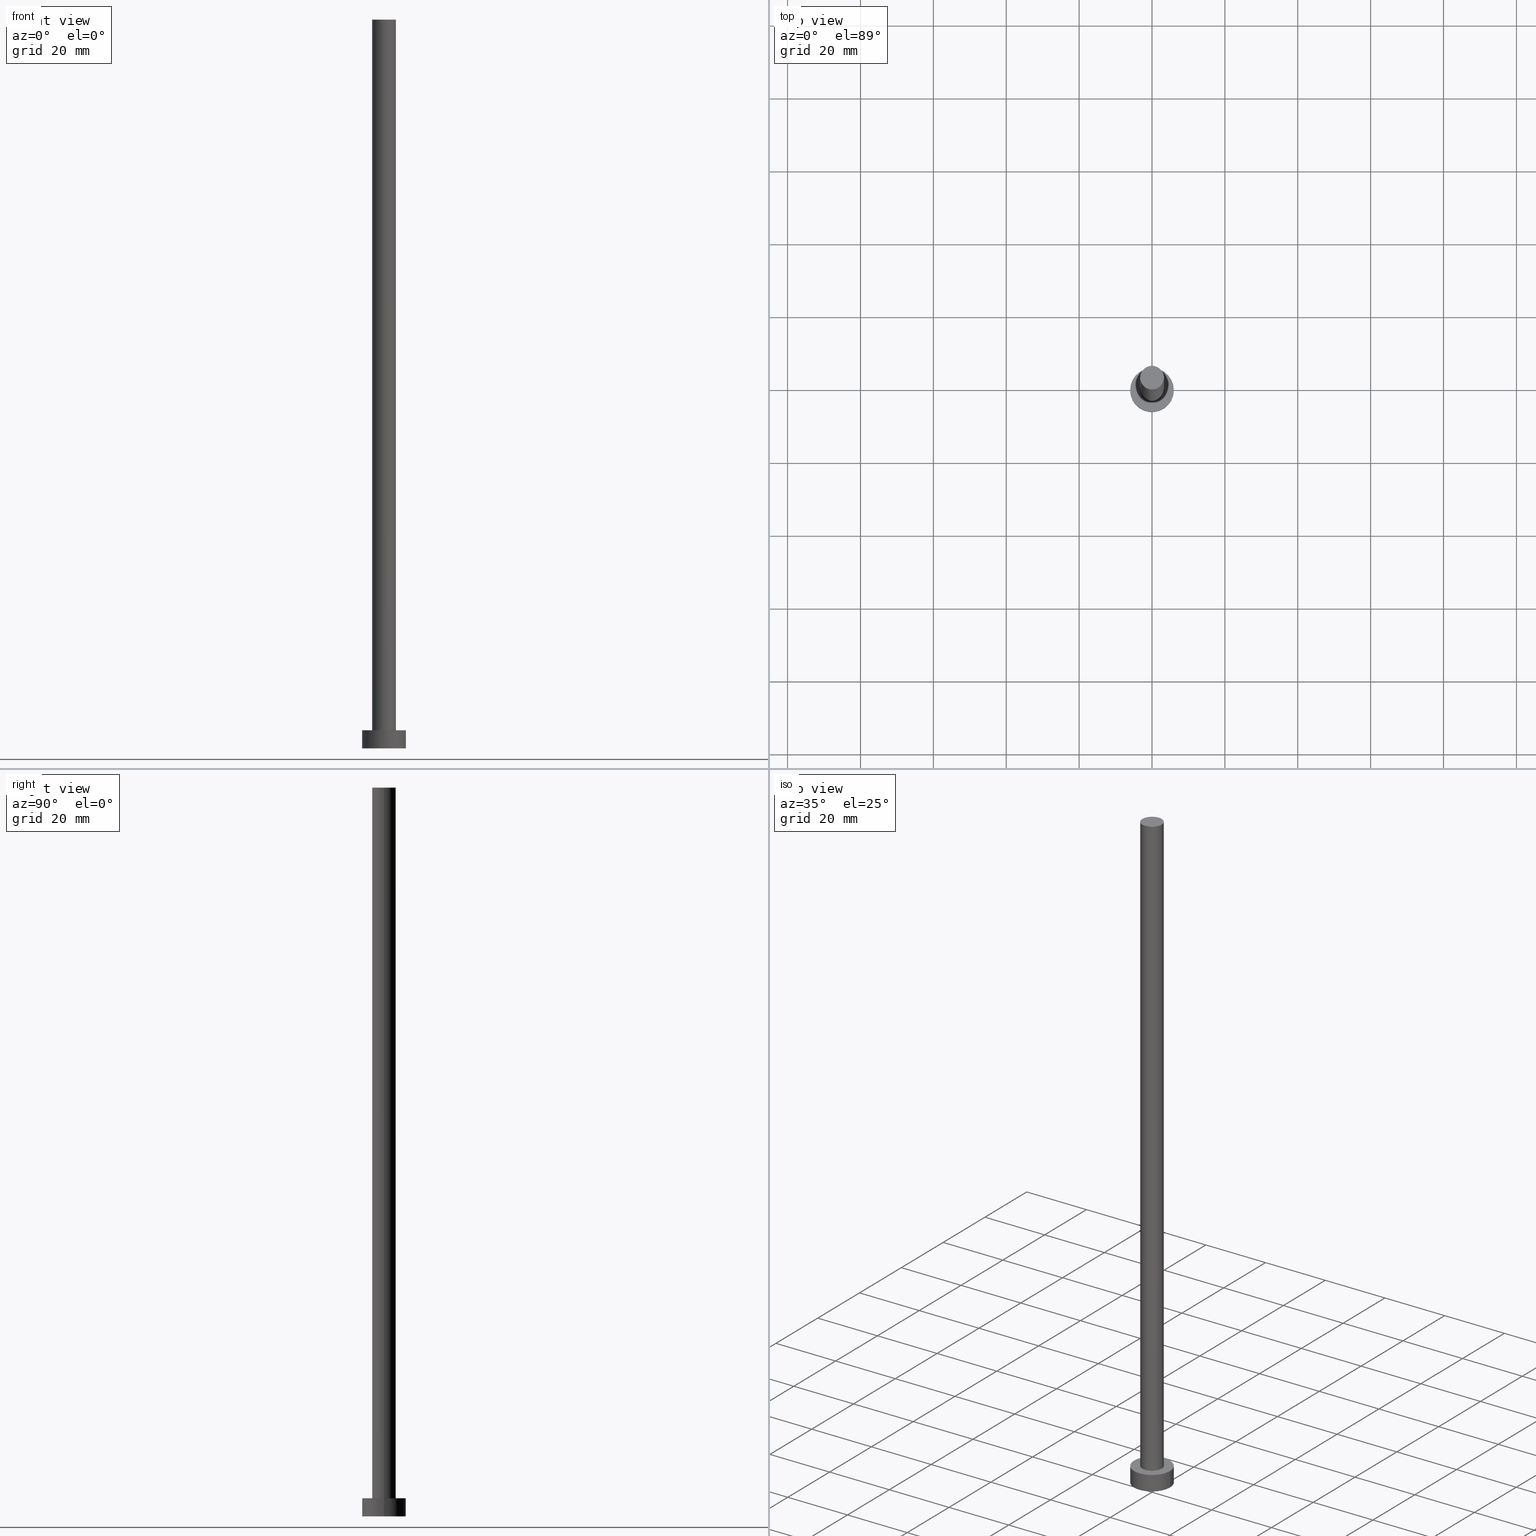
[diagram: canonical four-view strip — front | top / right | iso, engineering-drawing reading convention]
A machine part, canonical four-view strip (front | top / right | iso — engineering-drawing reading convention). The complete STEP part file that produces these views, byte-faithful:
ISO-10303-21;
HEADER;
FILE_DESCRIPTION (( 'STEP AP203' ),
    '1' );
FILE_NAME ('703b.STEP',
    '2023-02-13T14:53:12',
    ( '' ),
    ( '' ),
    'SwSTEP 2.0',
    'SolidWorks 2019',
    '' );
FILE_SCHEMA (( 'CONFIG_CONTROL_DESIGN' ));
ENDSEC;

DATA;
#1 = EDGE_CURVE ( 'NONE', #225, #96, #252, .T. ) ;
#2 = DIRECTION ( 'NONE',  ( 1.000000000000000000, 0.000000000000000000, 0.000000000000000000 ) ) ;
#3 = ADVANCED_FACE ( 'NONE', ( #148 ), #107, .T. ) ;
#4 = PERSON_AND_ORGANIZATION_ROLE ( 'creator' ) ;
#5 = ORIENTED_EDGE ( 'NONE', *, *, #232, .T. ) ;
#6 = AXIS2_PLACEMENT_3D ( 'NONE', #151, #55, #34 ) ;
#7 = EDGE_CURVE ( 'NONE', #250, #227, #132, .T. ) ;
#8 = CARTESIAN_POINT ( 'NONE',  ( 0.000000000000000000, 0.000000000000000000, 5.000000000000000000 ) ) ;
#9 = FACE_OUTER_BOUND ( 'NONE', #204, .T. ) ;
#10 = FACE_OUTER_BOUND ( 'NONE', #44, .T. ) ;
#11 = ORIENTED_EDGE ( 'NONE', *, *, #186, .T. ) ;
#12 = CARTESIAN_POINT ( 'NONE',  ( -6.000000000000000888, 0.000000000000000000, 5.000000000000000000 ) ) ;
#13 = AXIS2_PLACEMENT_3D ( 'NONE', #50, #63, #128 ) ;
#14 = APPROVAL ( #78, 'NEUR�EN�' ) ;
#15 = CARTESIAN_POINT ( 'NONE',  ( 0.000000000000000000, 0.000000000000000000, 0.000000000000000000 ) ) ;
#16 = CARTESIAN_POINT ( 'NONE',  ( 3.250000000000000444, 3.980102097228898231E-16, 200.0000000000000000 ) ) ;
#17 = DIRECTION ( 'NONE',  ( 1.000000000000000000, 0.000000000000000000, 0.000000000000000000 ) ) ;
#18 = ADVANCED_FACE ( 'NONE', ( #10 ), #244, .T. ) ;
#19 = AXIS2_PLACEMENT_3D ( 'NONE', #150, #89, #52 ) ;
#20 = LINE ( 'NONE', #173, #233 ) ;
#21 = APPROVAL_DATE_TIME ( #155, #120 ) ;
#22 = PERSON_AND_ORGANIZATION ( #179, #77 ) ;
#23 = CC_DESIGN_SECURITY_CLASSIFICATION ( #60, ( #86 ) ) ;
#24 = APPROVAL_ROLE ( '' ) ;
#25 = COORDINATED_UNIVERSAL_TIME_OFFSET ( 1, 0, .AHEAD. ) ;
#26 = CALENDAR_DATE ( 2023, 13, 2 ) ;
#27 = CC_DESIGN_APPROVAL ( #120, ( #86 ) ) ;
#28 = VERTEX_POINT ( 'NONE', #226 ) ;
#29 = EDGE_LOOP ( 'NONE', ( #198, #143 ) ) ;
#30 = ORIENTED_EDGE ( 'NONE', *, *, #142, .T. ) ;
#31 = EDGE_LOOP ( 'NONE', ( #215, #5 ) ) ;
#32 = VERTEX_POINT ( 'NONE', #122 ) ;
#33 = ADVANCED_FACE ( 'NONE', ( #46, #125 ), #87, .T. ) ;
#34 = DIRECTION ( 'NONE',  ( 1.000000000000000000, 0.000000000000000000, 0.000000000000000000 ) ) ;
#35 = LINE ( 'NONE', #12, #238 ) ;
#36 = DIRECTION ( 'NONE',  ( -0.000000000000000000, -0.000000000000000000, -1.000000000000000000 ) ) ;
#37 = AXIS2_PLACEMENT_3D ( 'NONE', #146, #202, #229 ) ;
#38 = FACE_OUTER_BOUND ( 'NONE', #68, .T. ) ;
#39 = ORIENTED_EDGE ( 'NONE', *, *, #248, .T. ) ;
#40 = DATE_TIME_ROLE ( 'creation_date' ) ;
#41 = APPLICATION_CONTEXT ( 'configuration controlled 3d designs of mechanical parts and assemblies' ) ;
#42 = CALENDAR_DATE ( 2023, 13, 2 ) ;
#43 = CARTESIAN_POINT ( 'NONE',  ( -3.250000000000000444, 0.000000000000000000, 200.0000000000000000 ) ) ;
#44 = EDGE_LOOP ( 'NONE', ( #106, #30, #11, #116 ) ) ;
#45 = EDGE_CURVE ( 'NONE', #225, #32, #245, .T. ) ;
#46 = FACE_BOUND ( 'NONE', #29, .T. ) ;
#47 = ORIENTED_EDGE ( 'NONE', *, *, #76, .F. ) ;
#48 = CIRCLE ( 'NONE', #170, 6.000000000000000888 ) ;
#49 = CC_DESIGN_PERSON_AND_ORGANIZATION_ASSIGNMENT ( #57, #80, ( #86 ) ) ;
#50 = CARTESIAN_POINT ( 'NONE',  ( 0.000000000000000000, 0.000000000000000000, 200.0000000000000000 ) ) ;
#51 = PRODUCT ( '703b', '703b', '', ( #81 ) ) ;
#52 = DIRECTION ( 'NONE',  ( 1.000000000000000000, 0.000000000000000000, -0.000000000000000000 ) ) ;
#53 = CIRCLE ( 'NONE', #6, 3.250000000000000444 ) ;
#54 = APPLICATION_PROTOCOL_DEFINITION ( 'international standard', 'config_control_design', 1994, #189 ) ;
#55 = DIRECTION ( 'NONE',  ( 0.000000000000000000, 0.000000000000000000, 1.000000000000000000 ) ) ;
#56 = PERSON_AND_ORGANIZATION ( #179, #77 ) ;
#57 = PERSON_AND_ORGANIZATION ( #179, #77 ) ;
#58 = ORIENTED_EDGE ( 'NONE', *, *, #142, .F. ) ;
#59 = DATE_AND_TIME ( #196, #224 ) ;
#60 = SECURITY_CLASSIFICATION ( '', '', #141 ) ;
#61 = CC_DESIGN_APPROVAL ( #14, ( #207 ) ) ;
#62 = SHAPE_DEFINITION_REPRESENTATION ( #251, #195 ) ;
#63 = DIRECTION ( 'NONE',  ( -0.000000000000000000, -0.000000000000000000, -1.000000000000000000 ) ) ;
#64 = DIRECTION ( 'NONE',  ( 0.000000000000000000, 0.000000000000000000, 1.000000000000000000 ) ) ;
#65 = AXIS2_PLACEMENT_3D ( 'NONE', #167, #231, #129 ) ;
#66 = EDGE_CURVE ( 'NONE', #32, #28, #115, .T. ) ;
#67 = ORIENTED_EDGE ( 'NONE', *, *, #253, .F. ) ;
#68 = EDGE_LOOP ( 'NONE', ( #47, #147 ) ) ;
#69 = DIRECTION ( 'NONE',  ( 1.000000000000000000, 0.000000000000000000, 0.000000000000000000 ) ) ;
#70 = CIRCLE ( 'NONE', #246, 3.250000000000000444 ) ;
#71 = DIRECTION ( 'NONE',  ( -1.000000000000000000, 0.000000000000000000, 0.000000000000000000 ) ) ;
#72 = CARTESIAN_POINT ( 'NONE',  ( -3.250000000000000444, 0.000000000000000000, 200.0000000000000000 ) ) ;
#73 = CC_DESIGN_DATE_AND_TIME_ASSIGNMENT ( #121, #160, ( #60 ) ) ;
#74 =( NAMED_UNIT ( * ) PLANE_ANGLE_UNIT ( ) SI_UNIT ( $, .RADIAN. ) );
#75 = FACE_OUTER_BOUND ( 'NONE', #247, .T. ) ;
#76 = EDGE_CURVE ( 'NONE', #221, #168, #178, .T. ) ;
#77 = ORGANIZATION ( 'NEUR�EN�', 'NEUR�EN�', '' ) ;
#78 = APPROVAL_STATUS ( 'not_yet_approved' ) ;
#79 = APPROVAL_ROLE ( '' ) ;
#80 = PERSON_AND_ORGANIZATION_ROLE ( 'creator' ) ;
#81 = MECHANICAL_CONTEXT ( 'NONE', #189, 'mechanical' ) ;
#82 = ORIENTED_EDGE ( 'NONE', *, *, #253, .T. ) ;
#83 = DIRECTION ( 'NONE',  ( 1.000000000000000000, 0.000000000000000000, 0.000000000000000000 ) ) ;
#84 = DESIGN_CONTEXT ( 'detailed design', #41, 'design' ) ;
#85 = CYLINDRICAL_SURFACE ( 'NONE', #65, 3.250000000000000444 ) ;
#86 = PRODUCT_DEFINITION_FORMATION_WITH_SPECIFIED_SOURCE ( 'LIBOVOLN�', '', #51, .NOT_KNOWN. ) ;
#87 = PLANE ( 'NONE',  #176 ) ;
#88 = ORIENTED_EDGE ( 'NONE', *, *, #232, .F. ) ;
#89 = DIRECTION ( 'NONE',  ( 0.000000000000000000, 0.000000000000000000, 1.000000000000000000 ) ) ;
#90 = DIRECTION ( 'NONE',  ( 1.000000000000000000, 0.000000000000000000, -0.000000000000000000 ) ) ;
#91 = CARTESIAN_POINT ( 'NONE',  ( 0.000000000000000000, 0.000000000000000000, 5.000000000000000000 ) ) ;
#92 = CARTESIAN_POINT ( 'NONE',  ( 0.000000000000000000, 0.000000000000000000, 0.000000000000000000 ) ) ;
#93 = AXIS2_PLACEMENT_3D ( 'NONE', #165, #64, #145 ) ;
#94 = LINE ( 'NONE', #16, #135 ) ;
#95 = CC_DESIGN_PERSON_AND_ORGANIZATION_ASSIGNMENT ( #56, #4, ( #207 ) ) ;
#96 = VERTEX_POINT ( 'NONE', #124 ) ;
#97 = APPROVAL_DATE_TIME ( #59, #14 ) ;
#98 = PERSON_AND_ORGANIZATION_ROLE ( 'design_supplier' ) ;
#99 = PERSON_AND_ORGANIZATION ( #179, #77 ) ;
#100 = ORIENTED_EDGE ( 'NONE', *, *, #45, .T. ) ;
#101 = ADVANCED_FACE ( 'NONE', ( #9 ), #85, .T. ) ;
#102 = DIRECTION ( 'NONE',  ( -0.000000000000000000, -0.000000000000000000, -1.000000000000000000 ) ) ;
#103 = ORIENTED_EDGE ( 'NONE', *, *, #66, .T. ) ;
#104 = ORIENTED_EDGE ( 'NONE', *, *, #76, .T. ) ;
#105 = APPROVAL_PERSON_ORGANIZATION ( #214, #130, #138 ) ;
#106 = ORIENTED_EDGE ( 'NONE', *, *, #110, .F. ) ;
#107 = CYLINDRICAL_SURFACE ( 'NONE', #152, 6.000000000000000888 ) ;
#108 = FACE_OUTER_BOUND ( 'NONE', #208, .T. ) ;
#109 = LOCAL_TIME ( 15, 53, 12.00000000000000000, #200 ) ;
#110 = EDGE_CURVE ( 'NONE', #96, #225, #70, .T. ) ;
#111 = CARTESIAN_POINT ( 'NONE',  ( -6.000000000000000888, 0.000000000000000000, 0.000000000000000000 ) ) ;
#112 = DIRECTION ( 'NONE',  ( -0.000000000000000000, -0.000000000000000000, -1.000000000000000000 ) ) ;
#113 = DIRECTION ( 'NONE',  ( 0.000000000000000000, 0.000000000000000000, 1.000000000000000000 ) ) ;
#114 = PRODUCT_RELATED_PRODUCT_CATEGORY ( 'detail', '', ( #51 ) ) ;
#115 = CIRCLE ( 'NONE', #182, 3.250000000000000444 ) ;
#116 = ORIENTED_EDGE ( 'NONE', *, *, #45, .F. ) ;
#117 = PERSON_AND_ORGANIZATION ( #179, #77 ) ;
#118 = LOCAL_TIME ( 15, 53, 12.00000000000000000, #25 ) ;
#119 = LOCAL_TIME ( 15, 53, 12.00000000000000000, #219 ) ;
#120 = APPROVAL ( #177, 'NEUR�EN�' ) ;
#121 = DATE_AND_TIME ( #26, #118 ) ;
#122 = CARTESIAN_POINT ( 'NONE',  ( -3.250000000000000444, 0.000000000000000000, 5.000000000000000000 ) ) ;
#123 = UNCERTAINTY_MEASURE_WITH_UNIT (LENGTH_MEASURE( 1.000000000000000082E-05 ), #172, 'distance_accuracy_value', 'NONE');
#124 = CARTESIAN_POINT ( 'NONE',  ( 3.250000000000000444, 3.980102097228898231E-16, 200.0000000000000000 ) ) ;
#125 = FACE_OUTER_BOUND ( 'NONE', #31, .T. ) ;
#126 = CC_DESIGN_APPROVAL ( #130, ( #60 ) ) ;
#127 = ORIENTED_EDGE ( 'NONE', *, *, #7, .F. ) ;
#128 = DIRECTION ( 'NONE',  ( -1.000000000000000000, 0.000000000000000000, 0.000000000000000000 ) ) ;
#129 = DIRECTION ( 'NONE',  ( -1.000000000000000000, 0.000000000000000000, 0.000000000000000000 ) ) ;
#130 = APPROVAL ( #242, 'NEUR�EN�' ) ;
#131 = CARTESIAN_POINT ( 'NONE',  ( 6.000000000000000888, 7.347880794884120722E-16, 0.000000000000000000 ) ) ;
#132 = CIRCLE ( 'NONE', #37, 6.000000000000000888 ) ;
#133 = CARTESIAN_POINT ( 'NONE',  ( -6.000000000000000888, 0.000000000000000000, 5.000000000000000000 ) ) ;
#134 = DIRECTION ( 'NONE',  ( 0.000000000000000000, 0.000000000000000000, 1.000000000000000000 ) ) ;
#135 = VECTOR ( 'NONE', #149, 1000.000000000000000 ) ;
#136 = PERSON_AND_ORGANIZATION ( #179, #77 ) ;
#137 = ORIENTED_EDGE ( 'NONE', *, *, #1, .T. ) ;
#138 = APPROVAL_ROLE ( '' ) ;
#139 = ORIENTED_EDGE ( 'NONE', *, *, #175, .T. ) ;
#140 = CALENDAR_DATE ( 2023, 13, 2 ) ;
#141 = SECURITY_CLASSIFICATION_LEVEL ( 'unclassified' ) ;
#142 = EDGE_CURVE ( 'NONE', #96, #28, #94, .T. ) ;
#143 = ORIENTED_EDGE ( 'NONE', *, *, #186, .F. ) ;
#144 = MANIFOLD_SOLID_BREP ( 'P�idat vysunut�m3', #161 ) ;
#145 = DIRECTION ( 'NONE',  ( 1.000000000000000000, 0.000000000000000000, 0.000000000000000000 ) ) ;
#146 = CARTESIAN_POINT ( 'NONE',  ( 0.000000000000000000, 0.000000000000000000, 5.000000000000000000 ) ) ;
#147 = ORIENTED_EDGE ( 'NONE', *, *, #248, .F. ) ;
#148 = FACE_OUTER_BOUND ( 'NONE', #185, .T. ) ;
#149 = DIRECTION ( 'NONE',  ( -0.000000000000000000, -0.000000000000000000, -1.000000000000000000 ) ) ;
#150 = CARTESIAN_POINT ( 'NONE',  ( 0.000000000000000000, 0.000000000000000000, 200.0000000000000000 ) ) ;
#151 = CARTESIAN_POINT ( 'NONE',  ( 0.000000000000000000, 0.000000000000000000, 5.000000000000000000 ) ) ;
#152 = AXIS2_PLACEMENT_3D ( 'NONE', #180, #187, #184 ) ;
#153 = ADVANCED_FACE ( 'NONE', ( #38 ), #212, .F. ) ;
#154 = CYLINDRICAL_SURFACE ( 'NONE', #188, 6.000000000000000888 ) ;
#155 = DATE_AND_TIME ( #140, #119 ) ;
#156 = AXIS2_PLACEMENT_3D ( 'NONE', #92, #254, #193 ) ;
#157 = PERSON_AND_ORGANIZATION_ROLE ( 'classification_officer' ) ;
#158 = CC_DESIGN_PERSON_AND_ORGANIZATION_ASSIGNMENT ( #117, #98, ( #86 ) ) ;
#159 = CALENDAR_DATE ( 2023, 13, 2 ) ;
#160 = DATE_TIME_ROLE ( 'classification_date' ) ;
#161 = CLOSED_SHELL ( 'NONE', ( #18, #3, #191, #33, #153, #101, #162 ) ) ;
#162 = ADVANCED_FACE ( 'NONE', ( #108 ), #255, .T. ) ;
#163 = PERSON_AND_ORGANIZATION_ROLE ( 'design_owner' ) ;
#164 = DIRECTION ( 'NONE',  ( 0.000000000000000000, 0.000000000000000000, 1.000000000000000000 ) ) ;
#165 = CARTESIAN_POINT ( 'NONE',  ( 0.000000000000000000, 0.000000000000000000, 0.000000000000000000 ) ) ;
#166 = AXIS2_PLACEMENT_3D ( 'NONE', #15, #192, #90 ) ;
#167 = CARTESIAN_POINT ( 'NONE',  ( 0.000000000000000000, 0.000000000000000000, 200.0000000000000000 ) ) ;
#168 = VERTEX_POINT ( 'NONE', #131 ) ;
#169 = ORIENTED_EDGE ( 'NONE', *, *, #1, .F. ) ;
#170 = AXIS2_PLACEMENT_3D ( 'NONE', #91, #134, #17 ) ;
#171 = CARTESIAN_POINT ( 'NONE',  ( 0.000000000000000000, 0.000000000000000000, 5.000000000000000000 ) ) ;
#172 =( LENGTH_UNIT ( ) NAMED_UNIT ( * ) SI_UNIT ( .MILLI., .METRE. ) );
#173 = CARTESIAN_POINT ( 'NONE',  ( 6.000000000000000888, 7.347880794884120722E-16, 5.000000000000000000 ) ) ;
#174 =( GEOMETRIC_REPRESENTATION_CONTEXT ( 3 ) GLOBAL_UNCERTAINTY_ASSIGNED_CONTEXT ( ( #123 ) ) GLOBAL_UNIT_ASSIGNED_CONTEXT ( ( #172, #74, #234 ) ) REPRESENTATION_CONTEXT ( 'NONE', 'WORKASPACE' ) );
#175 = EDGE_CURVE ( 'NONE', #250, #221, #35, .T. ) ;
#176 = AXIS2_PLACEMENT_3D ( 'NONE', #205, #209, #222 ) ;
#177 = APPROVAL_STATUS ( 'not_yet_approved' ) ;
#178 = CIRCLE ( 'NONE', #93, 6.000000000000000888 ) ;
#179 = PERSON ( 'NEUR�EN�', 'NEUR�EN�', 'NEUR�EN�', ('NEUR�EN�'), ('NEUR�EN�'), ('NEUR�EN�') ) ;
#180 = CARTESIAN_POINT ( 'NONE',  ( 0.000000000000000000, 0.000000000000000000, 5.000000000000000000 ) ) ;
#181 = CARTESIAN_POINT ( 'NONE',  ( 0.000000000000000000, 0.000000000000000000, 200.0000000000000000 ) ) ;
#182 = AXIS2_PLACEMENT_3D ( 'NONE', #8, #249, #83 ) ;
#183 = AXIS2_PLACEMENT_3D ( 'NONE', #213, #113, #2 ) ;
#184 = DIRECTION ( 'NONE',  ( -1.000000000000000000, 0.000000000000000000, 0.000000000000000000 ) ) ;
#185 = EDGE_LOOP ( 'NONE', ( #88, #82, #39, #217 ) ) ;
#186 = EDGE_CURVE ( 'NONE', #28, #32, #53, .T. ) ;
#187 = DIRECTION ( 'NONE',  ( -0.000000000000000000, -0.000000000000000000, -1.000000000000000000 ) ) ;
#188 = AXIS2_PLACEMENT_3D ( 'NONE', #171, #36, #71 ) ;
#189 = APPLICATION_CONTEXT ( 'configuration controlled 3d designs of mechanical parts and assemblies' ) ;
#190 = DIRECTION ( 'NONE',  ( -0.000000000000000000, -0.000000000000000000, -1.000000000000000000 ) ) ;
#191 = ADVANCED_FACE ( 'NONE', ( #75 ), #154, .T. ) ;
#192 = DIRECTION ( 'NONE',  ( 0.000000000000000000, 0.000000000000000000, 1.000000000000000000 ) ) ;
#193 = DIRECTION ( 'NONE',  ( 1.000000000000000000, 0.000000000000000000, 0.000000000000000000 ) ) ;
#194 = CIRCLE ( 'NONE', #156, 6.000000000000000888 ) ;
#195 = ADVANCED_BREP_SHAPE_REPRESENTATION ( '703b', ( #144, #183 ), #174 ) ;
#196 = CALENDAR_DATE ( 2023, 13, 2 ) ;
#197 = DATE_AND_TIME ( #42, #109 ) ;
#198 = ORIENTED_EDGE ( 'NONE', *, *, #66, .F. ) ;
#199 = APPROVAL_DATE_TIME ( #216, #130 ) ;
#200 = COORDINATED_UNIVERSAL_TIME_OFFSET ( 1, 0, .AHEAD. ) ;
#201 = AXIS2_PLACEMENT_3D ( 'NONE', #181, #164, #69 ) ;
#202 = DIRECTION ( 'NONE',  ( 0.000000000000000000, 0.000000000000000000, 1.000000000000000000 ) ) ;
#203 = CC_DESIGN_PERSON_AND_ORGANIZATION_ASSIGNMENT ( #99, #163, ( #51 ) ) ;
#204 = EDGE_LOOP ( 'NONE', ( #58, #169, #100, #103 ) ) ;
#205 = CARTESIAN_POINT ( 'NONE',  ( 0.000000000000000000, 0.000000000000000000, 5.000000000000000000 ) ) ;
#206 = APPROVAL_PERSON_ORGANIZATION ( #136, #120, #79 ) ;
#207 = PRODUCT_DEFINITION ( 'NEZN�M�', '', #86, #84 ) ;
#208 = EDGE_LOOP ( 'NONE', ( #137, #240 ) ) ;
#209 = DIRECTION ( 'NONE',  ( 0.000000000000000000, 0.000000000000000000, 1.000000000000000000 ) ) ;
#210 = CARTESIAN_POINT ( 'NONE',  ( 0.000000000000000000, 0.000000000000000000, 200.0000000000000000 ) ) ;
#211 = LOCAL_TIME ( 15, 53, 12.00000000000000000, #239 ) ;
#212 = PLANE ( 'NONE',  #166 ) ;
#213 = CARTESIAN_POINT ( 'NONE',  ( 0.000000000000000000, 0.000000000000000000, 0.000000000000000000 ) ) ;
#214 = PERSON_AND_ORGANIZATION ( #179, #77 ) ;
#215 = ORIENTED_EDGE ( 'NONE', *, *, #7, .T. ) ;
#216 = DATE_AND_TIME ( #159, #211 ) ;
#217 = ORIENTED_EDGE ( 'NONE', *, *, #175, .F. ) ;
#218 = APPROVAL_PERSON_ORGANIZATION ( #220, #14, #24 ) ;
#219 = COORDINATED_UNIVERSAL_TIME_OFFSET ( 1, 0, .AHEAD. ) ;
#220 = PERSON_AND_ORGANIZATION ( #179, #77 ) ;
#221 = VERTEX_POINT ( 'NONE', #111 ) ;
#222 = DIRECTION ( 'NONE',  ( 1.000000000000000000, 0.000000000000000000, -0.000000000000000000 ) ) ;
#223 = CC_DESIGN_DATE_AND_TIME_ASSIGNMENT ( #197, #40, ( #207 ) ) ;
#224 = LOCAL_TIME ( 15, 53, 12.00000000000000000, #237 ) ;
#225 = VERTEX_POINT ( 'NONE', #72 ) ;
#226 = CARTESIAN_POINT ( 'NONE',  ( 3.250000000000000444, 3.980102097228898231E-16, 5.000000000000000000 ) ) ;
#227 = VERTEX_POINT ( 'NONE', #236 ) ;
#228 = VECTOR ( 'NONE', #102, 1000.000000000000000 ) ;
#229 = DIRECTION ( 'NONE',  ( 1.000000000000000000, 0.000000000000000000, 0.000000000000000000 ) ) ;
#230 = DIRECTION ( 'NONE',  ( 0.000000000000000000, 0.000000000000000000, 1.000000000000000000 ) ) ;
#231 = DIRECTION ( 'NONE',  ( -0.000000000000000000, -0.000000000000000000, -1.000000000000000000 ) ) ;
#232 = EDGE_CURVE ( 'NONE', #227, #250, #48, .T. ) ;
#233 = VECTOR ( 'NONE', #190, 1000.000000000000000 ) ;
#234 =( NAMED_UNIT ( * ) SI_UNIT ( $, .STERADIAN. ) SOLID_ANGLE_UNIT ( ) );
#235 = DIRECTION ( 'NONE',  ( 1.000000000000000000, 0.000000000000000000, 0.000000000000000000 ) ) ;
#236 = CARTESIAN_POINT ( 'NONE',  ( 6.000000000000000888, 7.347880794884120722E-16, 5.000000000000000000 ) ) ;
#237 = COORDINATED_UNIVERSAL_TIME_OFFSET ( 1, 0, .AHEAD. ) ;
#238 = VECTOR ( 'NONE', #112, 1000.000000000000000 ) ;
#239 = COORDINATED_UNIVERSAL_TIME_OFFSET ( 1, 0, .AHEAD. ) ;
#240 = ORIENTED_EDGE ( 'NONE', *, *, #110, .T. ) ;
#241 = CC_DESIGN_PERSON_AND_ORGANIZATION_ASSIGNMENT ( #22, #157, ( #60 ) ) ;
#242 = APPROVAL_STATUS ( 'not_yet_approved' ) ;
#243 = APPLICATION_PROTOCOL_DEFINITION ( 'international standard', 'config_control_design', 1994, #41 ) ;
#244 = CYLINDRICAL_SURFACE ( 'NONE', #13, 3.250000000000000444 ) ;
#245 = LINE ( 'NONE', #43, #228 ) ;
#246 = AXIS2_PLACEMENT_3D ( 'NONE', #210, #230, #235 ) ;
#247 = EDGE_LOOP ( 'NONE', ( #67, #127, #139, #104 ) ) ;
#248 = EDGE_CURVE ( 'NONE', #168, #221, #194, .T. ) ;
#249 = DIRECTION ( 'NONE',  ( 0.000000000000000000, 0.000000000000000000, 1.000000000000000000 ) ) ;
#250 = VERTEX_POINT ( 'NONE', #133 ) ;
#251 = PRODUCT_DEFINITION_SHAPE ( 'NONE', 'NONE',  #207 ) ;
#252 = CIRCLE ( 'NONE', #201, 3.250000000000000444 ) ;
#253 = EDGE_CURVE ( 'NONE', #227, #168, #20, .T. ) ;
#254 = DIRECTION ( 'NONE',  ( 0.000000000000000000, 0.000000000000000000, 1.000000000000000000 ) ) ;
#255 = PLANE ( 'NONE',  #19 ) ;
ENDSEC;
END-ISO-10303-21;
